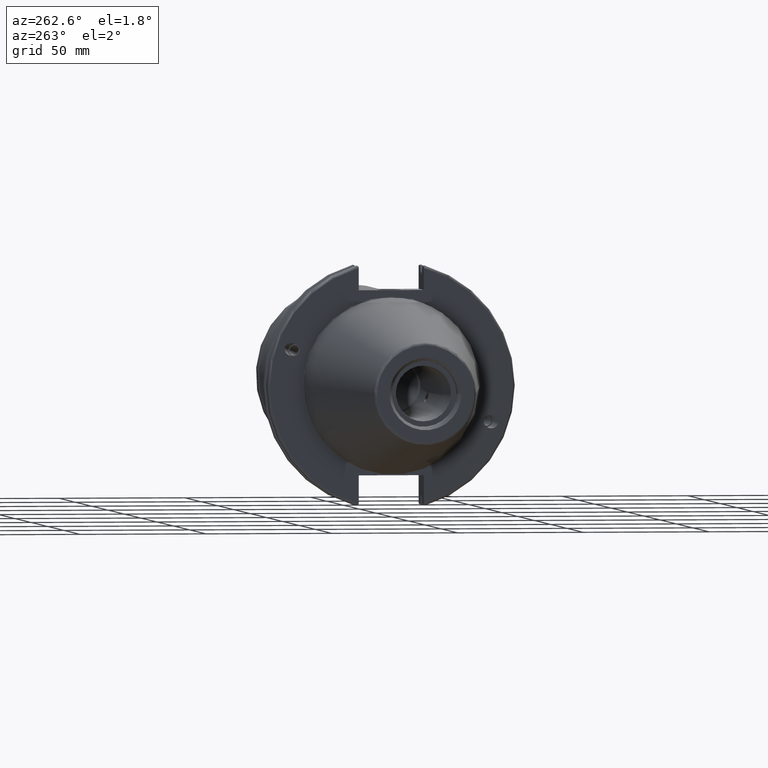
[diagram: clean part render]
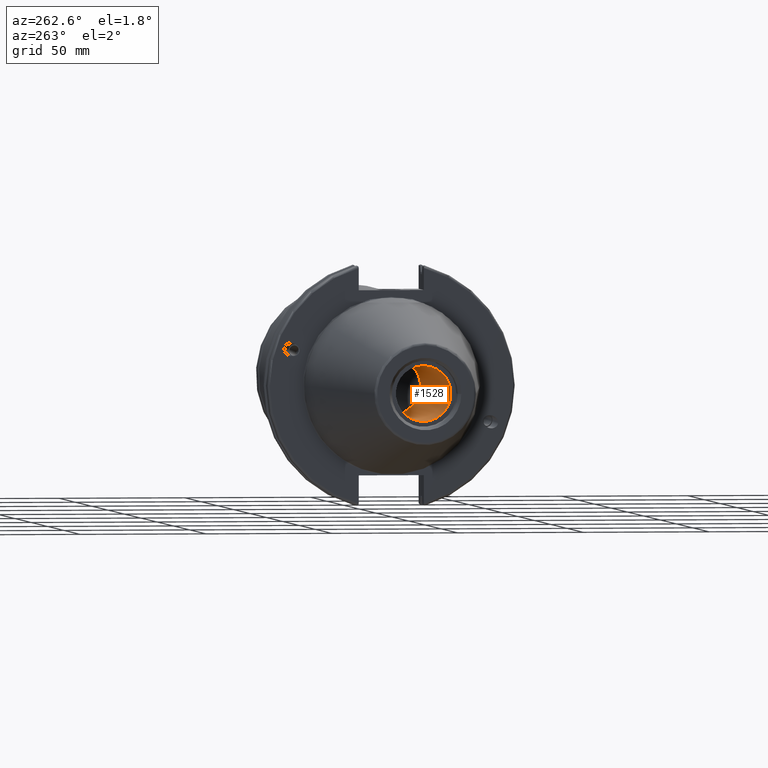
[diagram: same view with one face highlighted and labeled with its STEP entity id]
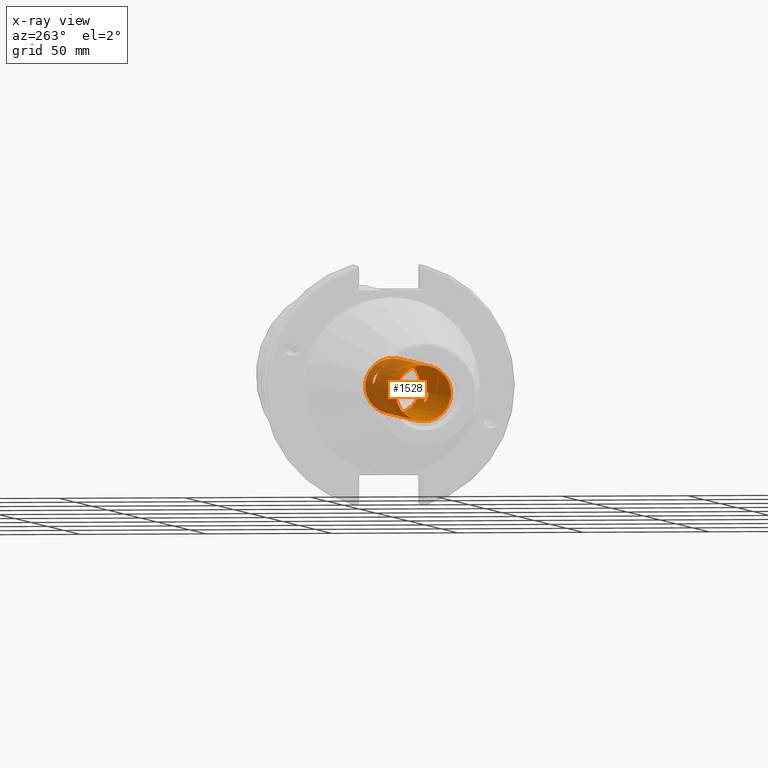
[diagram: x-ray of the same camera — body ghosted, the highlighted face saturated]
A machine part, auxiliary view. The second image highlights one B-rep face of the part: STEP entity #1528.
The next image is the same camera in x-ray: the body ghosted, the highlighted face saturated — about 36% of this face is hidden behind the body in this view.
In plain terms, the highlighted cylindrical surface (bore or boss wall) has radius 10.9855 mm, axis along (-1, 0, 0).
Its self-contained STEP definition (entity closure, byte-faithful):
#60=FACE_BOUND('',#292,.T.);
#61=FACE_BOUND('',#293,.T.);
#100=B_SPLINE_CURVE_WITH_KNOTS('',3,(#2475,#2476,#2477,#2478,#2479,#2480,
#2481,#2482,#2483,#2484,#2485,#2486,#2487,#2488,#2489,#2490,#2491,#2492,
#2493,#2494),.UNSPECIFIED.,.F.,.F.,(4,2,2,2,2,2,2,2,2,4),(0.,0.119686833233143,
0.239373666466287,0.327325587584447,0.371301548143528,0.415277508702608,
0.459253469261688,0.503229429820769,0.59118135093893,0.695184360164974),
 .UNSPECIFIED.);
#101=B_SPLINE_CURVE_WITH_KNOTS('',3,(#2495,#2496,#2497,#2498,#2499,#2500,
#2501,#2502,#2503,#2504,#2505,#2506,#2507,#2508,#2509,#2510,#2511,#2512,
#2513,#2514,#2515,#2516,#2517,#2518,#2519,#2520),.UNSPECIFIED.,.F.,.F.,
(4,2,2,2,2,2,2,2,2,2,2,2,4),(0.695184360164974,0.710868184172073,0.830555017405216,
0.980503405754825,1.13045179410443,1.20969727801656,1.24932001997262,1.28894276192868,
1.32856550388474,1.36818824584081,1.44743372975293,1.59738211810254,1.74733050645215),
 .UNSPECIFIED.);
#102=B_SPLINE_CURVE_WITH_KNOTS('',3,(#2573,#2574,#2575,#2576,#2577,#2578,
#2579,#2580,#2581,#2582,#2583,#2584,#2585,#2586,#2587,#2588),
 .UNSPECIFIED.,.F.,.F.,(4,2,2,2,2,2,2,4),(0.,0.131908529724542,0.263817059449084,
0.339382225992489,0.414947392535894,0.490512559079299,0.566077725622705,
0.693825267105461),.UNSPECIFIED.);
#103=B_SPLINE_CURVE_WITH_KNOTS('',3,(#2589,#2590,#2591,#2592,#2593,#2594,
#2595,#2596,#2597,#2598,#2599,#2600,#2601,#2602,#2603,#2604,#2605,#2606,
#2607,#2608,#2609,#2610,#2611,#2612),.UNSPECIFIED.,.F.,.F.,(4,2,2,2,2,2,
2,2,2,2,2,4),(0.693825267105461,0.697986255347245,0.829894785071785,1.09325104763117,
1.20929557753499,1.24540597506618,1.28151637259737,1.32113911455343,1.36076185650949,
1.44000734042161,1.58995572877122,1.73990411712083),.UNSPECIFIED.);
#193=FACE_OUTER_BOUND('',#291,.T.);
#291=EDGE_LOOP('',(#1208,#1209,#1210,#1211));
#292=EDGE_LOOP('',(#1212,#1213));
#293=EDGE_LOOP('',(#1214,#1215));
#381=LINE('',#2645,#464);
#464=VECTOR('',#2081,10.9855);
#566=CIRCLE('',#1716,10.9855);
#567=CIRCLE('',#1718,10.9855);
#657=VERTEX_POINT('',#2472);
#658=VERTEX_POINT('',#2474);
#674=VERTEX_POINT('',#2570);
#675=VERTEX_POINT('',#2572);
#682=VERTEX_POINT('',#2639);
#683=VERTEX_POINT('',#2643);
#832=EDGE_CURVE('',#658,#657,#100,.T.);
#833=EDGE_CURVE('',#657,#658,#101,.T.);
#859=EDGE_CURVE('',#675,#674,#102,.T.);
#860=EDGE_CURVE('',#674,#675,#103,.T.);
#873=EDGE_CURVE('',#682,#682,#566,.T.);
#875=EDGE_CURVE('',#683,#683,#567,.T.);
#876=EDGE_CURVE('',#683,#682,#381,.T.);
#1208=ORIENTED_EDGE('',*,*,#875,.F.);
#1209=ORIENTED_EDGE('',*,*,#876,.T.);
#1210=ORIENTED_EDGE('',*,*,#873,.F.);
#1211=ORIENTED_EDGE('',*,*,#876,.F.);
#1212=ORIENTED_EDGE('',*,*,#832,.T.);
#1213=ORIENTED_EDGE('',*,*,#833,.T.);
#1214=ORIENTED_EDGE('',*,*,#859,.T.);
#1215=ORIENTED_EDGE('',*,*,#860,.T.);
#1474=CYLINDRICAL_SURFACE('',#1717,10.9855);
#1528=ADVANCED_FACE('',(#193,#60,#61),#1474,.F.);
#1716=AXIS2_PLACEMENT_3D('',#2640,#2074,#2075);
#1717=AXIS2_PLACEMENT_3D('',#2642,#2077,#2078);
#1718=AXIS2_PLACEMENT_3D('',#2644,#2079,#2080);
#2074=DIRECTION('center_axis',(-1.,0.,0.));
#2075=DIRECTION('ref_axis',(0.,0.,1.));
#2077=DIRECTION('center_axis',(-1.,0.,0.));
#2078=DIRECTION('ref_axis',(0.,0.,1.));
#2079=DIRECTION('center_axis',(1.,0.,0.));
#2080=DIRECTION('ref_axis',(0.,0.,1.));
#2081=DIRECTION('',(1.,0.,0.));
#2472=CARTESIAN_POINT('',(-26.9402421846392,-9.52319068258424,-5.47631714497969));
#2474=CARTESIAN_POINT('',(-25.5235170780255,-10.8455693307922,-1.74780895437107));
#2475=CARTESIAN_POINT('Ctrl Pts',(-25.5235170780255,-10.8455693307922,-1.74780895437107));
#2476=CARTESIAN_POINT('Ctrl Pts',(-25.9224731888026,-10.8455693307922,-1.74780895437107));
#2477=CARTESIAN_POINT('Ctrl Pts',(-26.3581770333323,-10.839544391912,-1.78753535786581));
#2478=CARTESIAN_POINT('Ctrl Pts',(-27.1952133019484,-10.8055788020331,-1.98254195154673));
#2479=CARTESIAN_POINT('Ctrl Pts',(-27.5965111172946,-10.7776428389134,-2.13797148087135));
#2480=CARTESIAN_POINT('Ctrl Pts',(-28.1767635101751,-10.6969187361728,-2.50652755967298));
#2481=CARTESIAN_POINT('Ctrl Pts',(-28.4153488811481,-10.6478006682595,-2.71470706571078));
#2482=CARTESIAN_POINT('Ctrl Pts',(-28.6668674306608,-10.5455379056632,-3.08039961664504));
#2483=CARTESIAN_POINT('Ctrl Pts',(-28.7336624524962,-10.5066935444514,-3.21102732556314));
#2484=CARTESIAN_POINT('Ctrl Pts',(-28.8237105288222,-10.4204913025339,-3.48059248091202));
#2485=CARTESIAN_POINT('Ctrl Pts',(-28.8470008816521,-10.3731288334213,-3.619515999073));
#2486=CARTESIAN_POINT('Ctrl Pts',(-28.8470008816521,-10.2728577378659,-3.89500856993527));
#2487=CARTESIAN_POINT('Ctrl Pts',(-28.8237105288222,-10.2198411779741,-4.03187416735077));
#2488=CARTESIAN_POINT('Ctrl Pts',(-28.7336624524962,-10.1126027845179,-4.29378278969607));
#2489=CARTESIAN_POINT('Ctrl Pts',(-28.6668674306608,-10.0583934187964,-4.41881809432326));
#2490=CARTESIAN_POINT('Ctrl Pts',(-28.4153488811481,-9.90166859912615,-4.76468807758572));
#2491=CARTESIAN_POINT('Ctrl Pts',(-28.1767635101751,-9.8054800150361,-4.95573531682362));
#2492=CARTESIAN_POINT('Ctrl Pts',(-27.6403400086693,-9.64363837878105,-5.26470916228335));
#2493=CARTESIAN_POINT('Ctrl Pts',(-27.2993204044706,-9.57264151894871,-5.39032326783994));
#2494=CARTESIAN_POINT('Ctrl Pts',(-26.9402421846657,-9.52319068262686,-5.47631714497334));
#2495=CARTESIAN_POINT('Ctrl Pts',(-26.9402421846657,-9.52319068262686,-5.47631714497334));
#2496=CARTESIAN_POINT('Ctrl Pts',(-26.8860926014362,-9.51573341557615,-5.48928516238635));
#2497=CARTESIAN_POINT('Ctrl Pts',(-26.831537998593,-9.50875070268245,-5.50136697212495));
#2498=CARTESIAN_POINT('Ctrl Pts',(-26.3581770333323,-9.4525783272784,-5.59819330199644));
#2499=CARTESIAN_POINT('Ctrl Pts',(-25.9224731888026,-9.43165805828388,-5.63249824870002));
#2500=CARTESIAN_POINT('Ctrl Pts',(-25.0236891168601,-9.43165805828388,-5.63249824870001));
#2501=CARTESIAN_POINT('Ctrl Pts',(-24.4804797232463,-9.46427581922285,-5.57908486316072));
#2502=CARTESIAN_POINT('Ctrl Pts',(-23.4356208753768,-9.5958590173257,-5.34959762891445));
#2503=CARTESIAN_POINT('Ctrl Pts',(-22.9332191245712,-9.69347246434269,-5.17618411257941));
#2504=CARTESIAN_POINT('Ctrl Pts',(-22.294268750936,-9.88147703869243,-4.80193621364248));
#2505=CARTESIAN_POINT('Ctrl Pts',(-22.071505171321,-9.96204879721257,-4.63530906313461));
#2506=CARTESIAN_POINT('Ctrl Pts',(-21.82574034595,-10.0937873275589,-4.33687584128211));
#2507=CARTESIAN_POINT('Ctrl Pts',(-21.7582972123282,-10.1394813060058,-4.22933247382319));
#2508=CARTESIAN_POINT('Ctrl Pts',(-21.6652390563019,-10.2315025247259,-4.00157627722949));
#2509=CARTESIAN_POINT('Ctrl Pts',(-21.6395918285545,-10.2778206993677,-3.88137294527552));
#2510=CARTESIAN_POINT('Ctrl Pts',(-21.6395918285545,-10.3681658719195,-3.63315162373275));
#2511=CARTESIAN_POINT('Ctrl Pts',(-21.6652390563019,-10.4099493040427,-3.51129778048195));
#2512=CARTESIAN_POINT('Ctrl Pts',(-21.7582972123282,-10.485855821993,-3.27767631247393));
#2513=CARTESIAN_POINT('Ctrl Pts',(-21.82574034595,-10.5199797478263,-3.16592179025478));
#2514=CARTESIAN_POINT('Ctrl Pts',(-22.071505171321,-10.6108913560354,-2.85262878398763));
#2515=CARTESIAN_POINT('Ctrl Pts',(-22.294268750936,-10.6562756759326,-2.67319445320093));
#2516=CARTESIAN_POINT('Ctrl Pts',(-22.9332191245712,-10.7528177288589,-2.26565691891493));
#2517=CARTESIAN_POINT('Ctrl Pts',(-23.4356208753768,-10.7895095498502,-2.07006974408344));
#2518=CARTESIAN_POINT('Ctrl Pts',(-24.4804797232463,-10.8362225228904,-1.8096922741389));
#2519=CARTESIAN_POINT('Ctrl Pts',(-25.0236891168601,-10.8455693307922,-1.74780895437107));
#2520=CARTESIAN_POINT('Ctrl Pts',(-25.5235170780255,-10.8455693307922,-1.74780895437107));
#2570=CARTESIAN_POINT('',(-26.9402421845153,9.52319068260596,5.47631714500936));
#2572=CARTESIAN_POINT('',(-25.5235170780255,10.8455693307922,1.74780895437107));
#2573=CARTESIAN_POINT('Ctrl Pts',(-25.5235170780255,10.8455693307922,1.74780895437107));
#2574=CARTESIAN_POINT('Ctrl Pts',(-25.9632121771073,10.8455693307922,1.74780895437107));
#2575=CARTESIAN_POINT('Ctrl Pts',(-26.442594873787,10.8383709964217,1.7959664571658));
#2576=CARTESIAN_POINT('Ctrl Pts',(-27.3519799757018,10.7962891973262,2.03369662215048));
#2577=CARTESIAN_POINT('Ctrl Pts',(-27.7822172603396,10.761788810905,2.2224376752005));
#2578=CARTESIAN_POINT('Ctrl Pts',(-28.3252856471715,10.6648242982181,2.63951813091313));
#2579=CARTESIAN_POINT('Ctrl Pts',(-28.5137854586409,10.6160759510423,2.83420074050785));
#2580=CARTESIAN_POINT('Ctrl Pts',(-28.7750183392881,10.4885985150108,3.27460901933327));
#2581=CARTESIAN_POINT('Ctrl Pts',(-28.8470008816521,10.4091426492823,3.52056885320648));
#2582=CARTESIAN_POINT('Ctrl Pts',(-28.8470008816521,10.2368439220049,3.99395571580179));
#2583=CARTESIAN_POINT('Ctrl Pts',(-28.7750183392881,10.1396107127252,4.23344512577805));
#2584=CARTESIAN_POINT('Ctrl Pts',(-28.513785458641,9.9541751093878,4.65275835687149));
#2585=CARTESIAN_POINT('Ctrl Pts',(-28.3252856471715,9.8663789405842,4.83322872168078));
#2586=CARTESIAN_POINT('Ctrl Pts',(-27.7931087671317,9.67645097428544,5.20740068871255));
#2587=CARTESIAN_POINT('Ctrl Pts',(-27.3790493521749,9.58362147518866,5.37122937422736));
#2588=CARTESIAN_POINT('Ctrl Pts',(-26.9402421845154,9.52319068260616,5.47631714500934));
#2589=CARTESIAN_POINT('Ctrl Pts',(-26.9402421845154,9.52319068260616,5.47631714500934));
#2590=CARTESIAN_POINT('Ctrl Pts',(-26.9259493735239,9.52122233304375,5.47974006002988));
#2591=CARTESIAN_POINT('Ctrl Pts',(-26.9116304726285,9.51928731326139,5.48310074803667));
#2592=CARTESIAN_POINT('Ctrl Pts',(-26.442594873787,9.45709886034952,5.59098046114587));
#2593=CARTESIAN_POINT('Ctrl Pts',(-25.9632121771073,9.43165805828388,5.63249824870002));
#2594=CARTESIAN_POINT('Ctrl Pts',(-24.6456628694942,9.43165805828388,5.63249824870001));
#2595=CARTESIAN_POINT('Ctrl Pts',(-23.6129759087193,9.54300987243374,5.45682027341917));
#2596=CARTESIAN_POINT('Ctrl Pts',(-22.4915777455551,9.81430465972338,4.93888807981503));
#2597=CARTESIAN_POINT('Ctrl Pts',(-22.1135113311296,9.93511643701296,4.69819818081389));
#2598=CARTESIAN_POINT('Ctrl Pts',(-21.8167348410648,10.1002577332685,4.32151959704693));
#2599=CARTESIAN_POINT('Ctrl Pts',(-21.751306341111,10.1450171485842,4.21599403040907));
#2600=CARTESIAN_POINT('Ctrl Pts',(-21.6624430214445,10.2358005469391,3.99053453298755));
#2601=CARTESIAN_POINT('Ctrl Pts',(-21.6395918285545,10.2818250078464,3.87037119814982));
#2602=CARTESIAN_POINT('Ctrl Pts',(-21.6395918285544,10.3681658719195,3.63315162373275));
#2603=CARTESIAN_POINT('Ctrl Pts',(-21.6652390563019,10.4099493040427,3.51129778048195));
#2604=CARTESIAN_POINT('Ctrl Pts',(-21.7582972123282,10.485855821993,3.27767631247393));
#2605=CARTESIAN_POINT('Ctrl Pts',(-21.82574034595,10.5199797478263,3.16592179025479));
#2606=CARTESIAN_POINT('Ctrl Pts',(-22.071505171321,10.6108913560354,2.85262878398763));
#2607=CARTESIAN_POINT('Ctrl Pts',(-22.294268750936,10.6562756759326,2.67319445320093));
#2608=CARTESIAN_POINT('Ctrl Pts',(-22.9332191245712,10.7528177288589,2.26565691891493));
#2609=CARTESIAN_POINT('Ctrl Pts',(-23.4356208753768,10.7895095498502,2.07006974408344));
#2610=CARTESIAN_POINT('Ctrl Pts',(-24.4804797232463,10.8362225228904,1.8096922741389));
#2611=CARTESIAN_POINT('Ctrl Pts',(-25.0236891168601,10.8455693307922,1.74780895437107));
#2612=CARTESIAN_POINT('Ctrl Pts',(-25.5235170780255,10.8455693307922,1.74780895437107));
#2639=CARTESIAN_POINT('',(-1.6,-1.34533574120333E-15,-10.9855));
#2640=CARTESIAN_POINT('Origin',(-1.6,0.,0.));
#2642=CARTESIAN_POINT('Origin',(-51.6,0.,0.));
#2643=CARTESIAN_POINT('',(-95.25,1.34533574120333E-15,-10.9855));
#2644=CARTESIAN_POINT('Origin',(-95.25,0.,0.));
#2645=CARTESIAN_POINT('',(-51.6,-1.34533574120333E-15,-10.9855));